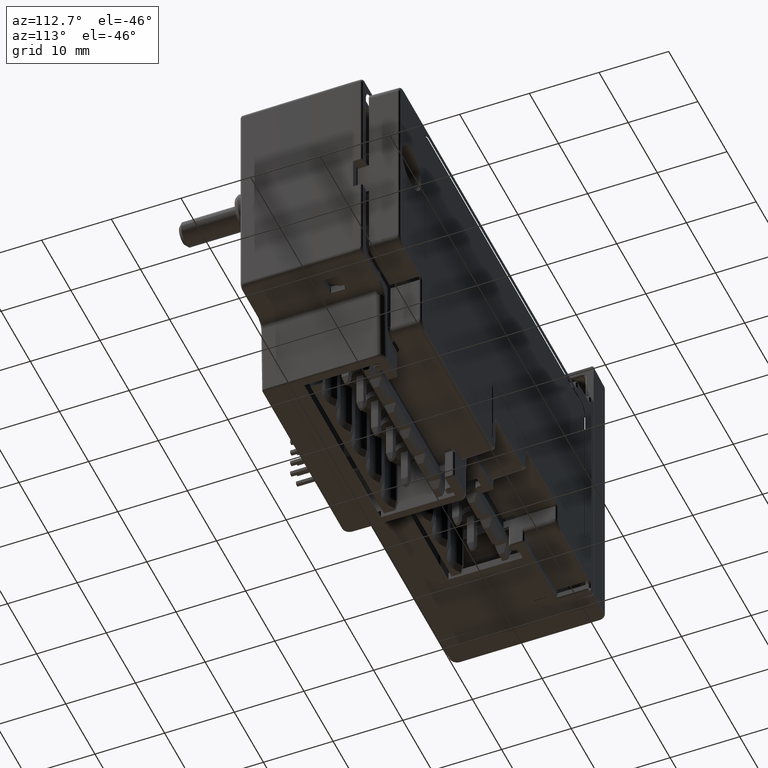
[diagram: clean part render]
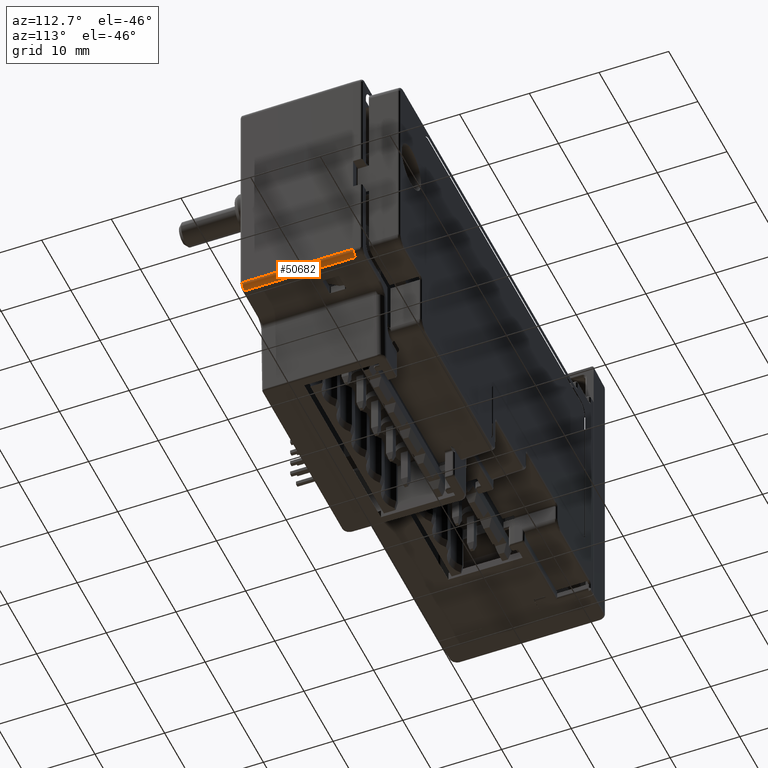
[diagram: same view with one face highlighted and labeled with its STEP entity id]
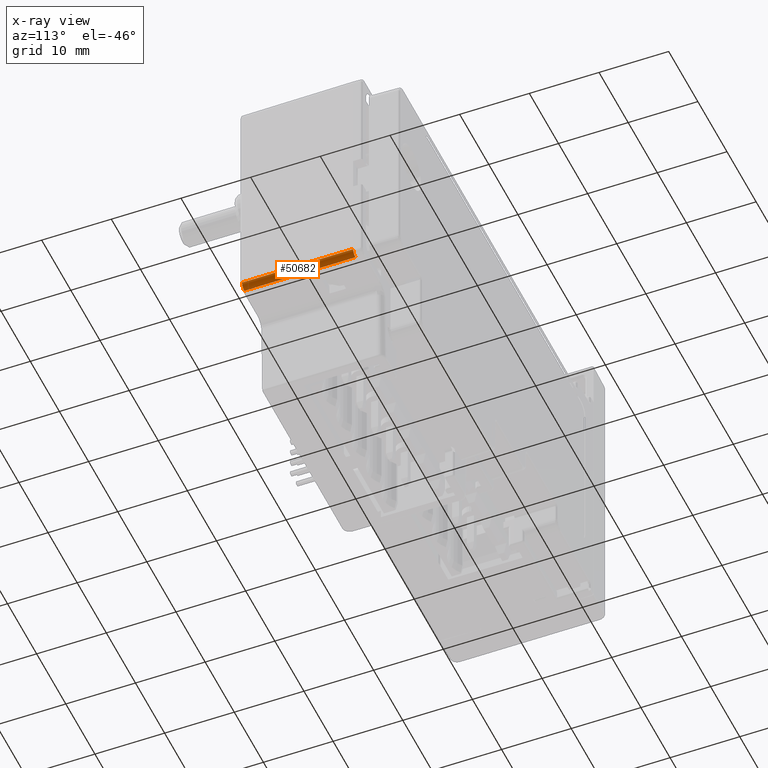
[diagram: x-ray of the same camera — body ghosted, the highlighted face saturated]
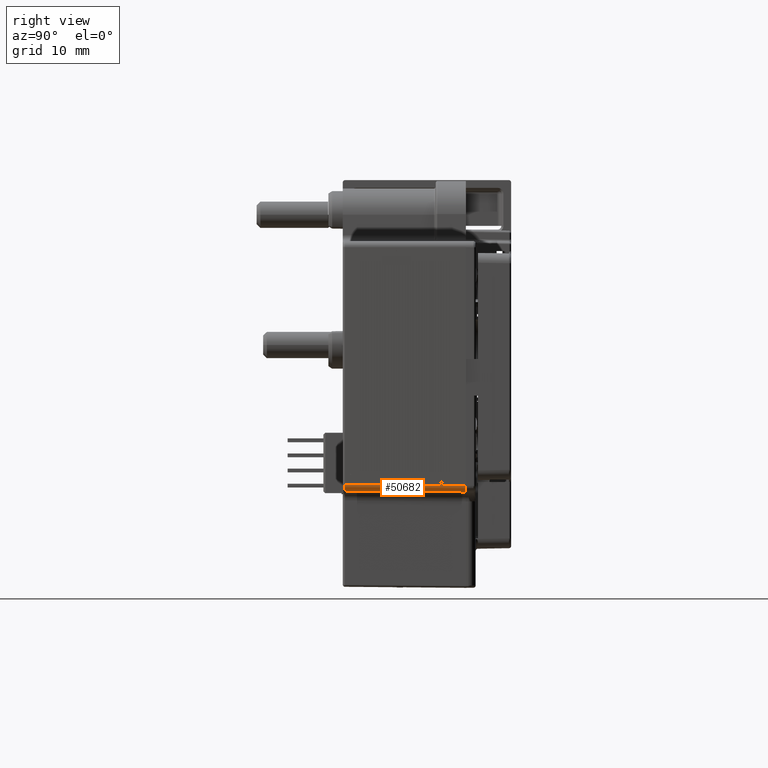
[diagram: same view with one face highlighted and labeled with its STEP entity id]
A machine part, auxiliary view. The second image highlights one B-rep face of the part: STEP entity #50682.
The next image is the same camera in x-ray: the body ghosted, the highlighted face saturated — about 0% of this face is hidden behind the body in this view.
A second angle (right view) of the same face is appended — the face is thin or edge-on in the first view.
In plain terms, the highlighted cylindrical surface (edge-blend (fillet) strip) has radius 0.8 mm, axis along (0.0087, 0.9999, -0.0087).
Its self-contained STEP definition (entity closure, byte-faithful):
#40761=CARTESIAN_POINT('',(3.923554328947E1,1.838439077170E0,
-7.348271213761E0));
#40762=CARTESIAN_POINT('',(3.923554328947E1,1.838439077170E0,
-7.414935341966E0));
#40763=CARTESIAN_POINT('',(3.921978698683E1,1.838439077170E0,
-7.532507295730E0));
#40764=CARTESIAN_POINT('',(3.915100428539E1,1.838439077170E0,
-7.730381107108E0));
#40765=CARTESIAN_POINT('',(3.901250624286E1,1.838439077170E0,
-7.925203705602E0));
#40766=CARTESIAN_POINT('',(3.881768364437E1,1.838439077170E0,
-8.063701748129E0));
#40767=CARTESIAN_POINT('',(3.861980983299E1,1.838439077170E0,
-8.132484449568E0));
#40768=CARTESIAN_POINT('',(3.850223787923E1,1.838439077170E0,
-8.148240752213E0));
#40769=CARTESIAN_POINT('',(3.843557375102E1,1.838439077170E0,
-8.148240752213E0));
#43334=DIRECTION('',(8.726203826274E-3,9.999238504725E-1,-8.726203243954E-3));
#43335=VECTOR('',#43334,1.600383664517E1);
#43336=CARTESIAN_POINT('',(3.909589054890E1,-1.416417888340E1,
-7.208618482513E0));
#43337=LINE('',#43336,#43335);
#43481=DIRECTION('',(8.726203247528E-3,9.999238500164E-1,-8.726256088396E-3));
#43482=VECTOR('',#43481,1.600383664517E1);
#43483=CARTESIAN_POINT('',(3.829592101972E1,-1.416417887610E1,
-8.008587175250E0));
#43484=LINE('',#43483,#43482);
#43756=CARTESIAN_POINT('',(3.829592101972E1,-1.416417887610E1,
-8.008587175250E0));
#43757=CARTESIAN_POINT('',(3.834869706509E1,-1.416435147983E1,
-8.008584774008E0));
#43758=CARTESIAN_POINT('',(3.845933957144E1,-1.416467984743E1,
-7.998193119124E0));
#43759=CARTESIAN_POINT('',(3.863406353865E1,-1.41650673E1,-7.941897031605E0));
#43760=CARTESIAN_POINT('',(3.880062652186E1,-1.416527762912E1,
-7.839624188838E0));
#43761=CARTESIAN_POINT('',(3.893813545916E1,-1.416526627503E1,
-7.698677432511E0));
#43762=CARTESIAN_POINT('',(3.903508475240E1,-1.416504136482E1,
-7.533007346934E0));
#43763=CARTESIAN_POINT('',(3.908716187358E1,-1.416464993186E1,
-7.361314026630E0));
#43764=CARTESIAN_POINT('',(3.909588875682E1,-1.416433847283E1,
-7.257340256498E0));
#43765=CARTESIAN_POINT('',(3.909589054890E1,-1.416417888340E1,
-7.208618482513E0));
#46428=VERTEX_POINT('',#40761);
#46429=VERTEX_POINT('',#40769);
#46597=CARTESIAN_POINT('',(3.909589054890E1,-1.416417888340E1,
-7.208618482513E0));
#46599=VERTEX_POINT('',#46597);
#46602=VERTEX_POINT('',#43756);
#50670=CARTESIAN_POINT('',(3.829226298970E1,-1.457636638335E1,
-7.204960452439E0));
#50671=DIRECTION('',(8.726203243944E-3,9.999238504776E-1,-8.726203243944E-3));
#50672=DIRECTION('',(9.999619230642E-1,-8.726535498374E-3,0.E0));
#50673=AXIS2_PLACEMENT_3D('',#50670,#50671,#50672);
#50674=CYLINDRICAL_SURFACE('',#50673,8.E-1);
#50676=ORIENTED_EDGE('',*,*,#50675,.T.);
#50677=ORIENTED_EDGE('',*,*,#50363,.T.);
#50678=ORIENTED_EDGE('',*,*,#48425,.T.);
#50679=ORIENTED_EDGE('',*,*,#50410,.F.);
#50680=EDGE_LOOP('',(#50676,#50677,#50678,#50679));
#50681=FACE_OUTER_BOUND('',#50680,.F.);
#50682=ADVANCED_FACE('',(#50681),#50674,.T.);
#40770=B_SPLINE_CURVE_WITH_KNOTS('',3,(#40761,#40762,#40763,#40764,#40765,
#40766,#40767,#40768,#40769),.UNSPECIFIED.,.F.,.F.,(4,1,1,1,1,1,4),(0.E0,
1.25E-1,2.5E-1,5.E-1,7.5E-1,8.75E-1,1.E0),.UNSPECIFIED.);
#43766=B_SPLINE_CURVE_WITH_KNOTS('',3,(#43756,#43757,#43758,#43759,#43760,
#43761,#43762,#43763,#43764,#43765),.UNSPECIFIED.,.F.,.F.,(4,1,1,1,1,1,1,4),(
0.E0,1.428571428571E-1,2.857142857143E-1,4.285714285714E-1,5.714285714286E-1,
7.142857142857E-1,8.571428571429E-1,1.E0),.UNSPECIFIED.);
#48425=EDGE_CURVE('',#46428,#46429,#40770,.T.);
#50363=EDGE_CURVE('',#46599,#46428,#43337,.T.);
#50410=EDGE_CURVE('',#46602,#46429,#43484,.T.);
#50675=EDGE_CURVE('',#46602,#46599,#43766,.T.);